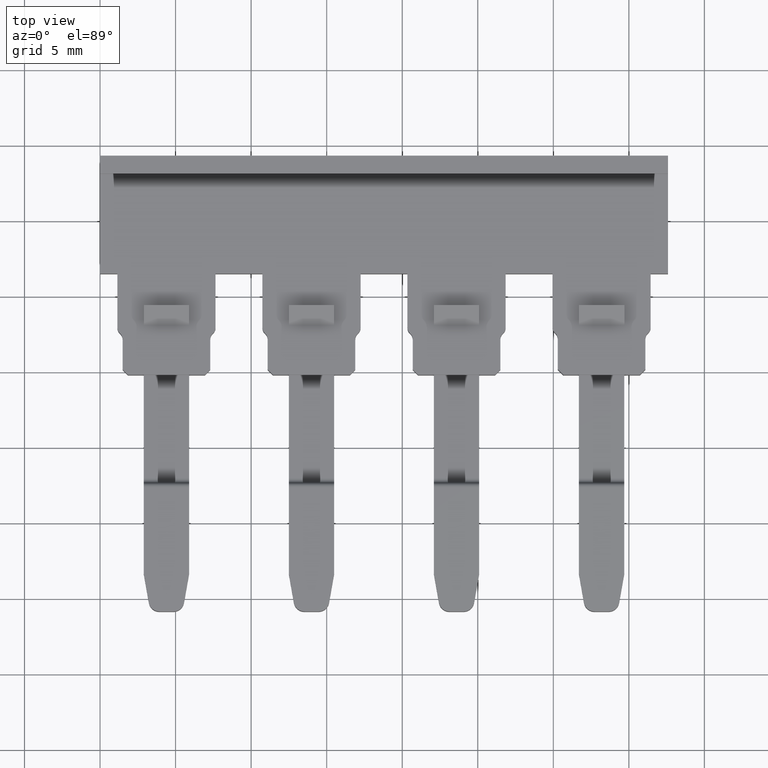
[diagram: clean part render]
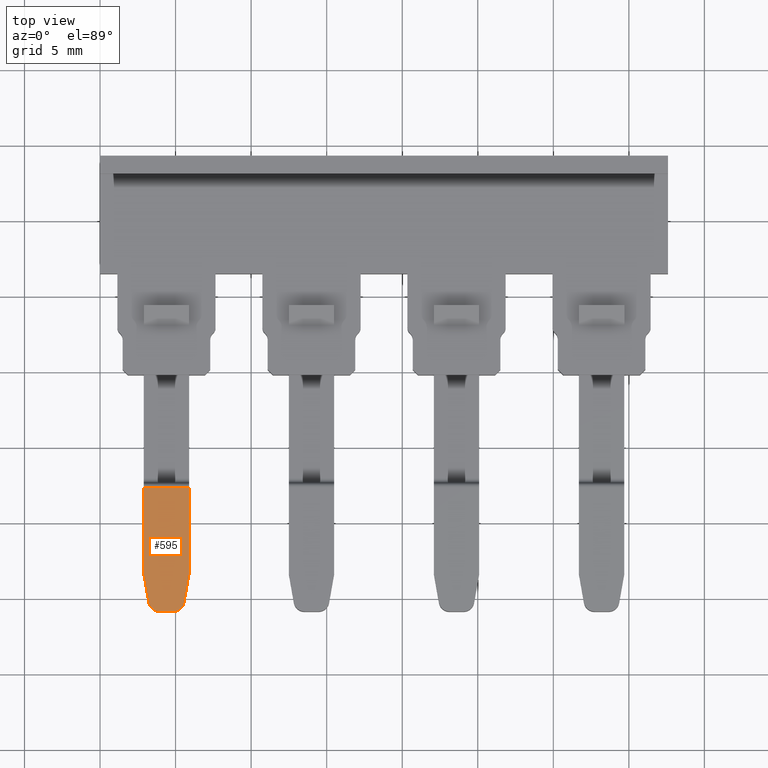
[diagram: same view with one face highlighted and labeled with its STEP entity id]
A machine part, top view. The second image highlights one B-rep face of the part: STEP entity #595.
In plain terms, the highlighted planar face has unit normal (-0, 0, 1).
Its self-contained STEP definition (entity closure, byte-faithful):
#372 = EDGE_CURVE ( 'NONE', #5280, #5296, #4023, .T. ) ;
#397 = EDGE_CURVE ( 'NONE', #5315, #5271, #4116, .T. ) ;
#412 = EDGE_CURVE ( 'NONE', #5313, #5256, #4184, .T. ) ;
#431 = EDGE_CURVE ( 'NONE', #5285, #5315, #3414, .T. ) ;
#447 = EDGE_CURVE ( 'NONE', #5280, #5313, #4307, .T. ) ;
#450 = EDGE_CURVE ( 'NONE', #5255, #5271, #5409, .T. ) ;
#456 = EDGE_CURVE ( 'NONE', #5256, #5285, #4334, .T. ) ;
#462 = EDGE_CURVE ( 'NONE', #5255, #5296, #4360, .T. ) ;
#595 = ADVANCED_FACE ( 'NONE', ( #1864 ), #1865, .T. ) ;
#1864 = FACE_OUTER_BOUND ( 'NONE', #4865, .T. ) ;
#1865 = PLANE ( 'NONE',  #2894 ) ;
#1866 = CARTESIAN_POINT ( 'NONE',  ( 1126.894434382171100, 641.5303140484550100, 2.847804784775056100 ) ) ;
#1867 = DIRECTION ( 'NONE',  ( 1.000000000000000000, 0.0000000000000000000, 5.364441115334514400E-014 ) ) ;
#1872 = DIRECTION ( 'NONE',  ( -5.364441115334514400E-014, 1.058364141383339600E-023, 1.000000000000000000 ) ) ;
#2283 = CARTESIAN_POINT ( 'NONE',  ( 1124.866249097331300, 644.1282913512167200, 2.847804784774927700 ) ) ;
#2287 = CARTESIAN_POINT ( 'NONE',  ( 1125.894445258720200, 652.3527367076559400, 2.847804784789210100 ) ) ;
#2288 = CARTESIAN_POINT ( 'NONE',  ( 1125.555614559366600, 644.7067378249282700, 2.847804784774987200 ) ) ;
#2293 = CARTESIAN_POINT ( 'NONE',  ( 1123.233259543838400, 644.7067378249282700, 2.847804784774850400 ) ) ;
#2300 = CARTESIAN_POINT ( 'NONE',  ( 1125.894440091514300, 646.6283161340935500, 2.847804784775002800 ) ) ;
#2339 = CARTESIAN_POINT ( 'NONE',  ( 1122.894434011690700, 646.6283161340937800, 2.847804784774840700 ) ) ;
#2349 = CARTESIAN_POINT ( 'NONE',  ( 1122.894434011690700, 652.3527719075091200, 2.847804784774824700 ) ) ;
#2353 = CARTESIAN_POINT ( 'NONE',  ( 1123.922625005873400, 644.1282913512167200, 2.847804784774896200 ) ) ;
#2894 = AXIS2_PLACEMENT_3D ( 'NONE', #1866, #1872, #1867 ) ;
#3309 = VECTOR ( 'NONE', #4111, 1000.000000000000000 ) ;
#3321 = VECTOR ( 'NONE', #4019, 1000.000000000000100 ) ;
#3364 = VECTOR ( 'NONE', #4335, 1000.000000000000100 ) ;
#3393 = VECTOR ( 'NONE', #4353, 1000.000000000000100 ) ;
#3394 = AXIS2_PLACEMENT_3D ( 'NONE', #4235, #4202, #4236 ) ;
#3408 = VECTOR ( 'NONE', #4187, 1000.000000000000000 ) ;
#3410 = VECTOR ( 'NONE', #4337, 1000.000000000000000 ) ;
#3414 = CIRCLE ( 'NONE', #3394, 0.6999999999999229100 ) ;
#4019 = DIRECTION ( 'NONE',  ( 7.162729585980651700E-007, -0.9999999999997434300, -2.254383868701461200E-012 ) ) ;
#4021 = CARTESIAN_POINT ( 'NONE',  ( 1125.894445258716800, 652.3527416319764100, 2.847804784787907600 ) ) ;
#4023 = LINE ( 'NONE', #4021, #3321 ) ;
#4111 = DIRECTION ( 'NONE',  ( 1.000000000000000000, -1.720418656508634100E-014, -0.0000000000000000000 ) ) ;
#4116 = LINE ( 'NONE', #4144, #3309 ) ;
#4144 = CARTESIAN_POINT ( 'NONE',  ( 1116.007395039572200, 644.1282913512167200, 2.847804784774895700 ) ) ;
#4184 = LINE ( 'NONE', #4196, #3408 ) ;
#4187 = DIRECTION ( 'NONE',  ( -0.0000000000000000000, -1.000000000000000000, -0.0000000000000000000 ) ) ;
#4196 = CARTESIAN_POINT ( 'NONE',  ( 1122.894434011690700, 652.6527719075244200, 2.847804784774840700 ) ) ;
#4202 = DIRECTION ( 'NONE',  ( -5.364441115151316900E-014, -2.347622273454535600E-024, 1.000000000000000000 ) ) ;
#4235 = CARTESIAN_POINT ( 'NONE',  ( 1123.922625005873400, 644.8282913512166500, 2.847804784774896200 ) ) ;
#4236 = DIRECTION ( 'NONE',  ( 1.000000000000000000, 0.0000000000000000000, 5.390033657499958300E-014 ) ) ;
#4301 = CARTESIAN_POINT ( 'NONE',  ( 1125.555614559366600, 644.7067378249282700, 2.847804784774987200 ) ) ;
#4306 = CARTESIAN_POINT ( 'NONE',  ( 1125.894440091514300, 652.3527367076559400, 2.847804784775002300 ) ) ;
#4307 = LINE ( 'NONE', #4306, #3364 ) ;
#4308 = CARTESIAN_POINT ( 'NONE',  ( 1125.527327763530100, 644.5463151644213400, 2.847804784774983200 ) ) ;
#4309 = CARTESIAN_POINT ( 'NONE',  ( 1125.029146527706600, 644.1282913512168300, 2.847804784774955700 ) ) ;
#4310 = CARTESIAN_POINT ( 'NONE',  ( 1124.866249097331300, 644.1282913512167200, 2.847804784774927700 ) ) ;
#4314 = CARTESIAN_POINT ( 'NONE',  ( 1122.894434011690700, 646.6283161340936700, 2.847804784774840700 ) ) ;
#4318 = CARTESIAN_POINT ( 'NONE',  ( 1125.440987157444900, 644.3967687734993900, 2.847804784774977900 ) ) ;
#4325 = CARTESIAN_POINT ( 'NONE',  ( 1125.191413844856200, 644.1873518378539500, 2.847804784774964600 ) ) ;
#4334 = LINE ( 'NONE', #4314, #3410 ) ;
#4335 = DIRECTION ( 'NONE',  ( -0.9999999999311652800, 1.173325889926041300E-005, -5.363175877137947600E-014 ) ) ;
#4337 = DIRECTION ( 'NONE',  ( 0.1736478946976646700, -0.9848078029072824300, -0.0000000000000000000 ) ) ;
#4352 = CARTESIAN_POINT ( 'NONE',  ( 1125.555614559366600, 644.7067378249282700, 2.847804784774984100 ) ) ;
#4353 = DIRECTION ( 'NONE',  ( 0.1736478946976743900, 0.9848078029072806500, 9.334970462687131000E-015 ) ) ;
#4360 = LINE ( 'NONE', #4352, #3393 ) ;
#4738 = ORIENTED_EDGE ( 'NONE', *, *, #397, .T. ) ;
#4744 = ORIENTED_EDGE ( 'NONE', *, *, #447, .T. ) ;
#4748 = ORIENTED_EDGE ( 'NONE', *, *, #431, .T. ) ;
#4759 = ORIENTED_EDGE ( 'NONE', *, *, #372, .F. ) ;
#4761 = ORIENTED_EDGE ( 'NONE', *, *, #450, .F. ) ;
#4768 = ORIENTED_EDGE ( 'NONE', *, *, #456, .T. ) ;
#4785 = ORIENTED_EDGE ( 'NONE', *, *, #412, .T. ) ;
#4795 = ORIENTED_EDGE ( 'NONE', *, *, #462, .T. ) ;
#4865 = EDGE_LOOP ( 'NONE', ( #4759, #4744, #4785, #4768, #4748, #4738, #4761, #4795 ) ) ;
#5255 = VERTEX_POINT ( 'NONE', #2288 ) ;
#5256 = VERTEX_POINT ( 'NONE', #2339 ) ;
#5271 = VERTEX_POINT ( 'NONE', #2283 ) ;
#5280 = VERTEX_POINT ( 'NONE', #2287 ) ;
#5285 = VERTEX_POINT ( 'NONE', #2293 ) ;
#5296 = VERTEX_POINT ( 'NONE', #2300 ) ;
#5313 = VERTEX_POINT ( 'NONE', #2349 ) ;
#5315 = VERTEX_POINT ( 'NONE', #2353 ) ;
#5409 = B_SPLINE_CURVE_WITH_KNOTS ( 'NONE', 3,
 ( #4301, #4308, #4318, #4325, #4309, #4310 ),
 .UNSPECIFIED., .F., .F.,
 ( 4, 2, 4 ),
 ( 0.0000000000000000000, 0.5000000000000000000, 1.000000000000000000 ),
 .UNSPECIFIED. ) ;